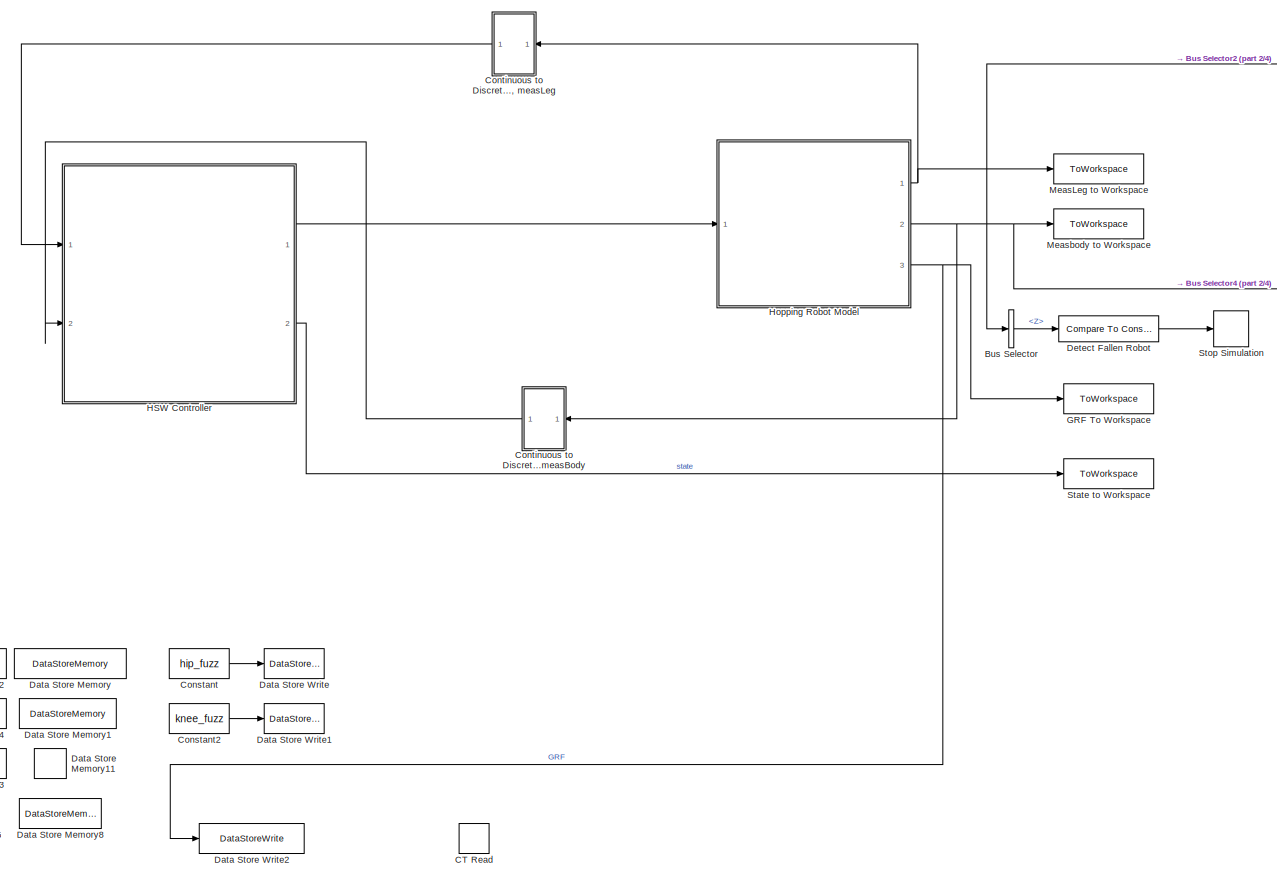
[diagram: root canvas - part 1/4, center side, full height]
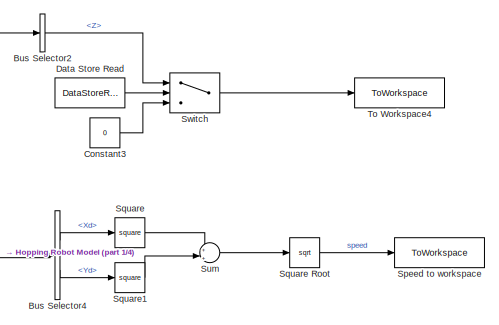
[diagram: root canvas - part 2/4, top right region]
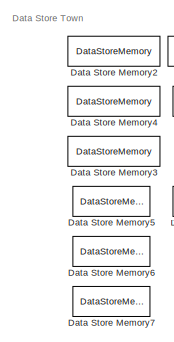
[diagram: root canvas - part 3/4, bottom left region]
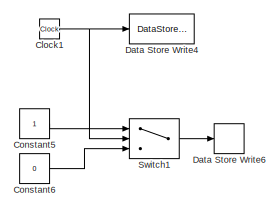
[diagram: root canvas - part 4/4, bottom left region]
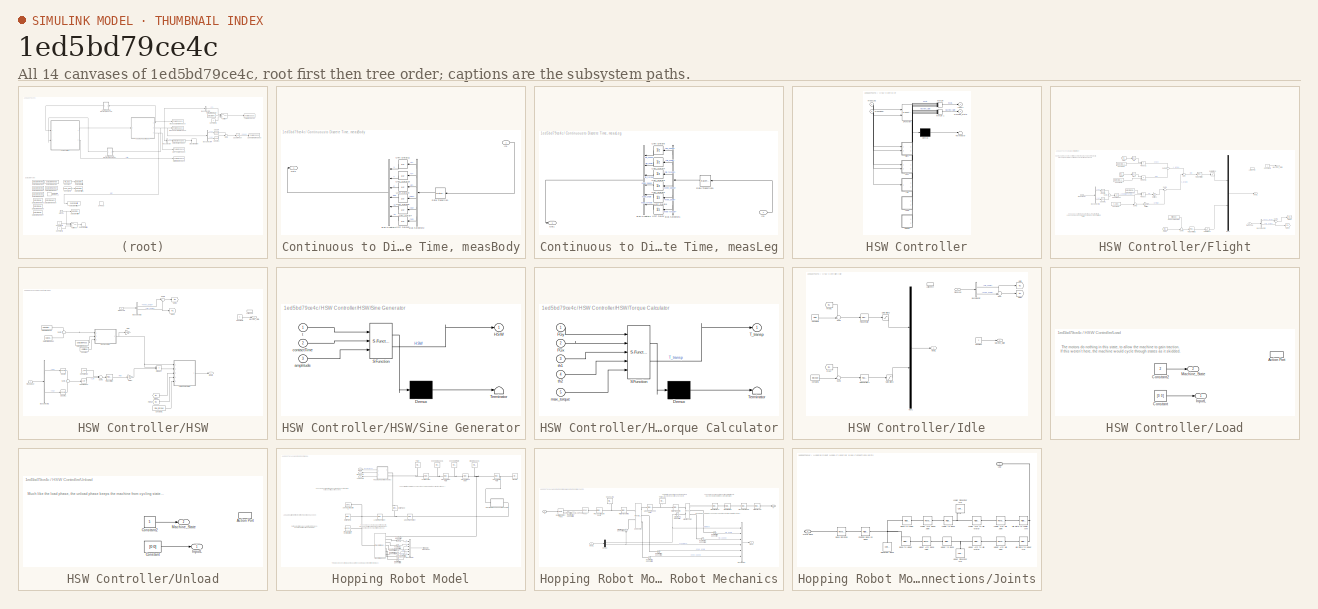
[diagram: thumbnail index - all 14 canvases of the model, root first then tree order]
MODEL slx_1ed5bd79ce4c
KIND model
CONFIG AbsTol = auto
CONFIG EnableMultiTasking = off
CONFIG FixedStep = 1E-6
CONFIG MaxStep = 1E-5
CONFIG MinStep = auto
CONFIG RelTol = 1E-9
CONFIG SampleTimeConstraint = Unconstrained
CONFIG SolverName = VariableStepAuto
CONFIG StartTime = 0.0
CONFIG StopTime = 4
BLOCK [BusSelector] Bus Selector
  OutputSignals = Z
  Ports = [1, 1]
BLOCK [BusSelector] Bus Selector2
  OutputSignals = Z
  Ports = [1, 1]
BLOCK [BusSelector] Bus Selector4
  OutputSignals = Xd,Yd
  Ports = [1, 2]
BLOCK [DataStoreRead] CT Read
  DataStoreName = contactTime
  IndexOptions = Index vector (dialog)
  Indices = 1
  OutputSizes = 1
  Ports = [0, 1]
BLOCK [Clock] Clock1
BLOCK [Constant] Constant
  Commented = on
  Value = hip_fuzz
BLOCK [Constant] Constant2
  Commented = on
  Value = knee_fuzz
BLOCK [Constant] Constant3
  Value = 0
BLOCK [Constant] Constant5
BLOCK [Constant] Constant6
  Value = 0
BLOCK [SubSystem] Continuous to Discrete Time, measBody
  Ports = [1, 1]
  RequestExecContextInheritance = off
BLOCK [BusCreator] Continuous to Discrete Time, measBody/Bus Creator2
  DisplayOption = bar
  InheritFromInputs = on
  Inputs = 6
  Ports = [6, 1]
BLOCK [BusSelector] Continuous to Discrete Time, measBody/Bus Selector2
  OutputSignals = X,Y,Z,Zdd,Xd,Yd
  Ports = [1, 6]
BLOCK [Inport] Continuous to Discrete Time, measBody/In1
BLOCK [Outport] Continuous to Discrete Time, measBody/Out1
BLOCK [RateTransition] Continuous to Discrete Time, measBody/Rate Transition
BLOCK [UnitDelay] Continuous to Discrete Time, measBody/Unit Delay10
  HasFrameUpgradeWarning = on
  SampleTime = -1
BLOCK [UnitDelay] Continuous to Discrete Time, measBody/Unit Delay11
  HasFrameUpgradeWarning = on
  SampleTime = -1
BLOCK [UnitDelay] Continuous to Discrete Time, measBody/Unit Delay6
  HasFrameUpgradeWarning = on
  SampleTime = -1
BLOCK [UnitDelay] Continuous to Discrete Time, measBody/Unit Delay7
  HasFrameUpgradeWarning = on
  SampleTime = -1
BLOCK [UnitDelay] Continuous to Discrete Time, measBody/Unit Delay8
  HasFrameUpgradeWarning = on
  SampleTime = -1
BLOCK [UnitDelay] Continuous to Discrete Time, measBody/Unit Delay9
  HasFrameUpgradeWarning = on
  SampleTime = -1
BLOCK [SubSystem] Continuous to Discrete Time, measLeg
  Ports = [1, 1]
  RequestExecContextInheritance = off
BLOCK [BusCreator] Continuous to Discrete Time, measLeg/Bus Creator1
  DisplayOption = bar
  InheritFromInputs = on
  Inputs = 6
  Ports = [6, 1]
BLOCK [BusSelector] Continuous to Discrete Time, measLeg/Bus Selector1
  OutputSignals = hip_speed,hip_angle,hip torque,knee_speed,knee_angle,knee torque
  Ports = [1, 6]
BLOCK [Inport] Continuous to Discrete Time, measLeg/In1
BLOCK [Outport] Continuous to Discrete Time, measLeg/Out1
BLOCK [RateTransition] Continuous to Discrete Time, measLeg/Rate Transition1
BLOCK [UnitDelay] Continuous to Discrete Time, measLeg/Unit Delay
  HasFrameUpgradeWarning = on
  SampleTime = -1
BLOCK [UnitDelay] Continuous to Discrete Time, measLeg/Unit Delay1
  HasFrameUpgradeWarning = on
  SampleTime = -1
BLOCK [UnitDelay] Continuous to Discrete Time, measLeg/Unit Delay2
  HasFrameUpgradeWarning = on
  SampleTime = -1
BLOCK [UnitDelay] Continuous to Discrete Time, measLeg/Unit Delay3
  HasFrameUpgradeWarning = on
  SampleTime = -1
BLOCK [UnitDelay] Continuous to Discrete Time, measLeg/Unit Delay4
  HasFrameUpgradeWarning = on
  SampleTime = -1
BLOCK [UnitDelay] Continuous to Discrete Time, measLeg/Unit Delay5
  HasFrameUpgradeWarning = on
  SampleTime = -1
BLOCK [DataStoreMemory] Data Store Memory
  DataStoreName = Simscape_Transitions
  Dimensions = 1
  OutDataTypeStr = double
  ShowAdditionalParam = off
  SignalType = real
  WriteAfterWriteMsg = warning
BLOCK [DataStoreMemory] Data Store Memory1
  DataStoreName = Hip_Impact_Angle
  OutDataTypeStr = double
  ShowAdditionalParam = off
  SignalType = real
  WriteAfterWriteMsg = warning
BLOCK [DataStoreMemory] Data Store Memory11
  DataStoreName = run
  OutDataTypeStr = double
  ShowAdditionalParam = off
  SignalType = real
  WriteAfterWriteMsg = warning
BLOCK [DataStoreMemory] Data Store Memory2
  DataStoreName = foot_y_flight
  OutDataTypeStr = double
  ShowAdditionalParam = off
  SignalType = real
  WriteAfterWriteMsg = warning
BLOCK [DataStoreMemory] Data Store Memory3
  DataStoreName = SLIP_impact_angle
  OutDataTypeStr = double
  ShowAdditionalParam = off
  SignalType = real
  WriteAfterWriteMsg = warning
BLOCK [DataStoreMemory] Data Store Memory4
  DataStoreName = foot_x_flight
  OutDataTypeStr = double
  ShowAdditionalParam = off
  SignalType = real
  WriteAfterWriteMsg = warning
BLOCK [DataStoreMemory] Data Store Memory5
  DataStoreName = simTime
  OutDataTypeStr = double
  ShowAdditionalParam = off
  SignalType = real
  WriteAfterWriteMsg = warning
BLOCK [DataStoreMemory] Data Store Memory6
  DataStoreName = contactTime
  OutDataTypeStr = double
  ShowAdditionalParam = off
  SignalType = real
  WriteAfterWriteMsg = warning
BLOCK [DataStoreMemory] Data Store Memory7
  DataStoreName = hasHopped
  OutDataTypeStr = double
  ShowAdditionalParam = off
  SignalType = real
  WriteAfterWriteMsg = warning
BLOCK [DataStoreMemory] Data Store Memory8
  DataStoreName = landingTime
  OutDataTypeStr = double
  ShowAdditionalParam = off
  SignalType = real
  WriteAfterWriteMsg = warning
BLOCK [DataStoreRead] Data Store Read
  DataStoreName = hasHopped
  IndexOptions = Index vector (dialog)
  Indices = 1
  OutputSizes = 1
  Ports = [0, 1]
BLOCK [DataStoreWrite] Data Store Write
  Commented = on
  DataStoreName = hip_range
  IndexOptions = Index vector (dialog)
  Indices = 1
  OutputSizes = 1
  Ports = [1]
BLOCK [DataStoreWrite] Data Store Write1
  Commented = on
  DataStoreName = knee_range
  IndexOptions = Index vector (dialog)
  Indices = 1
  OutputSizes = 1
  Ports = [1]
BLOCK [DataStoreWrite] Data Store Write2
  DataStoreName = Simscape_Transitions
  IndexOptions = Index vector (dialog)
  Indices = 1
  OutputSizes = 1
  Ports = [1]
BLOCK [DataStoreWrite] Data Store Write4
  DataStoreName = simTime
  IndexOptions = Index vector (dialog)
  Indices = 1
  OutputSizes = 1
  Ports = [1]
BLOCK [DataStoreWrite] Data Store Write6
  DataStoreName = run
  IndexOptions = Index vector (dialog)
  Indices = 1
  OutputSizes = 1
  Ports = [1]
BLOCK [Reference] Detect Fallen Robot  REF=simulink/Logic and Bit
Operations/Compare
To Constant
  Ports = [1, 1]
  SourceBlock = simulink/Logic and Bit\nOperations/Compare\nTo Constant
  SourceProductBaseCode = SL
  SourceType = Compare To Constant
BLOCK [ToWorkspace] GRF To Workspace
  Commented = on
  FixptAsFi = on
  MaxDataPoints = inf
  Ports = [1]
  SampleTime = -1
  VariableName = GRF
BLOCK [SubSystem] HSW Controller
  ErrorFcn = Stateflow.Translate.translate
  PermitHierarchicalResolution = ExplicitOnly
  Ports = [2, 2]
  RequestExecContextInheritance = off
  SFBlockType = Chart
  TreatAsAtomicUnit = on
BLOCK [Demux] HSW Controller/ Demux 
  Outputs = 1
  Ports = [1, 1]
BLOCK [Merge] HSW Controller/ Merge 
  Inputs = 6
  Ports = [6, 1]
BLOCK [Merge] HSW Controller/ Merge 1
  Inputs = 6
  Ports = [6, 1]
BLOCK [S-Function] HSW Controller/ SFunction 
  EnableBusSupport = on
  FunctionName = sf_sfun
  PortCounts = [2 3]
  Ports = [2, 3]
  SFcnIsStateOwnerBlock = off
  SFunctionDeploymentMode = off
  Tag = Stateflow S-Function 3
BLOCK [Terminator] HSW Controller/ Terminator 
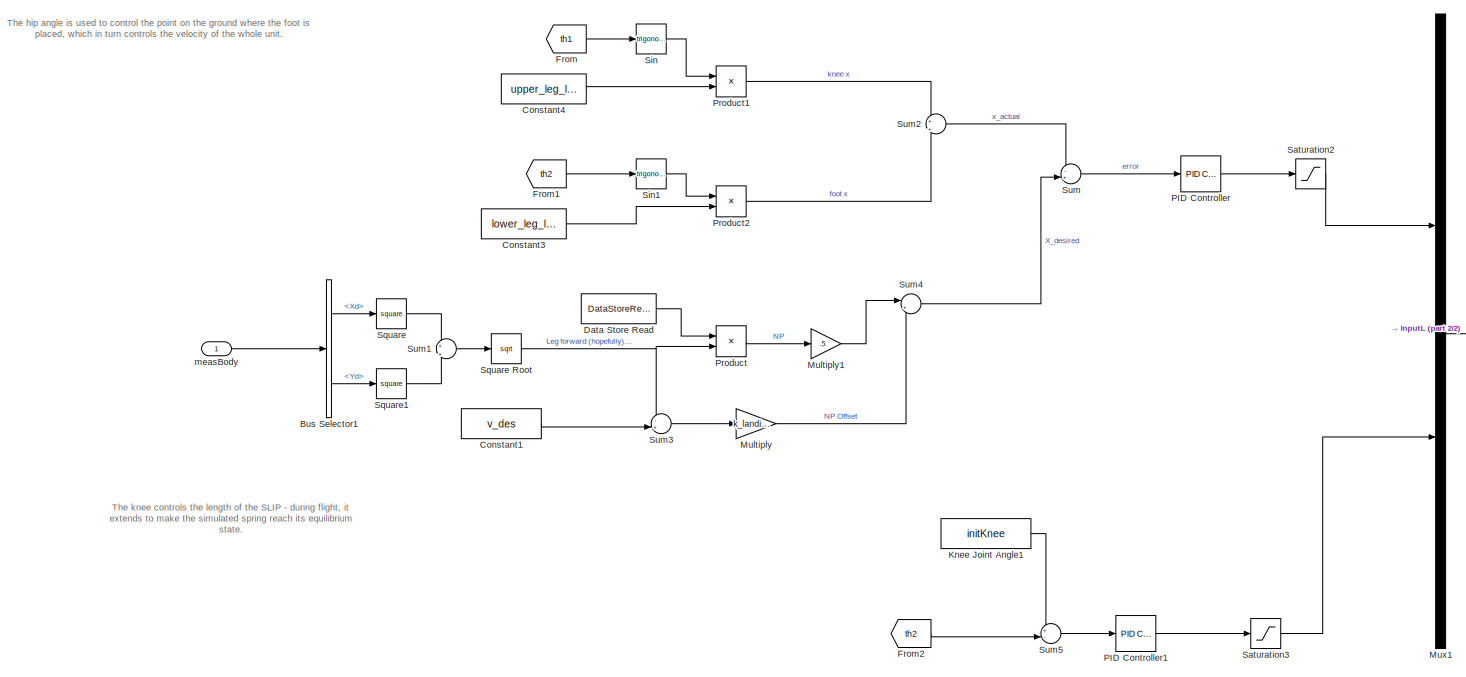
[diagram: HSW Controller/Flight - part 1/2, most of the canvas]
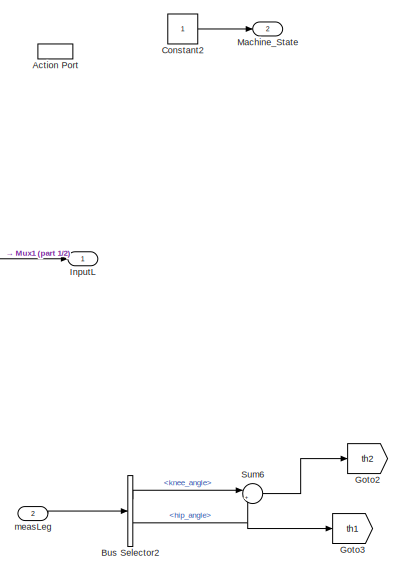
[diagram: HSW Controller/Flight - part 2/2, right side, full height]
BLOCK [SubSystem] HSW Controller/Flight
  Ports = [2, 2, 0, 0, 0, 0, 0, 1]
  PreDeleteFcn = Stateflow.SLINSF.SimulinkMan.removePreDeleteFcn
  RequestExecContextInheritance = off
  UndoDeleteFcn = Stateflow.SLINSF.SimulinkMan.restorePreDeleteFcn
BLOCK [ActionPort] HSW Controller/Flight/Action Port
  CopyFcn = Stateflow.SLINSF.SimulinkMan.removeBlockPreDeleteFcn
  PreDeleteFcn = Stateflow.SLINSF.SimulinkMan.unsafePredeleteFcn
BLOCK [BusSelector] HSW Controller/Flight/Bus Selector1
  OutputSignals = Xd,Yd
  Ports = [1, 2]
BLOCK [BusSelector] HSW Controller/Flight/Bus Selector2
  OutputSignals = knee_angle,hip_angle
  Ports = [1, 2]
BLOCK [Constant] HSW Controller/Flight/Constant1
  Value = v_des
BLOCK [Constant] HSW Controller/Flight/Constant2
BLOCK [Constant] HSW Controller/Flight/Constant3
  Value = lower_leg_length
BLOCK [Constant] HSW Controller/Flight/Constant4
  Value = upper_leg_length
BLOCK [DataStoreRead] HSW Controller/Flight/Data Store Read
  DataStoreName = contactTime
  IndexOptions = Index vector (dialog)
  Indices = 1
  OutputSizes = 1
  Ports = [0, 1]
BLOCK [From] HSW Controller/Flight/From
  GotoTag = th1
BLOCK [From] HSW Controller/Flight/From1
  GotoTag = th2
BLOCK [From] HSW Controller/Flight/From2
  GotoTag = th2
BLOCK [Goto] HSW Controller/Flight/Goto2
  GotoTag = th2
BLOCK [Goto] HSW Controller/Flight/Goto3
  GotoTag = th1
BLOCK [Outport] HSW Controller/Flight/InputL
BLOCK [Constant] HSW Controller/Flight/Knee Joint Angle1
  Value = initKnee
BLOCK [Outport] HSW Controller/Flight/Machine_State
  Port = 2
BLOCK [Gain] HSW Controller/Flight/Multiply
  Gain = k_landing_angle
BLOCK [Gain] HSW Controller/Flight/Multiply1
  Gain = .5
BLOCK [Mux] HSW Controller/Flight/Mux1
  DisplayOption = bar
  Inputs = 2
  Ports = [2, 1]
BLOCK [Reference] HSW Controller/Flight/PID Controller  REF=slpidlib/PID Controller
  Ports = [1, 1]
  SourceBlock = slpidlib/PID Controller
  SourceProductBaseCode = SL
  SourceType = PID 1dof
BLOCK [Reference] HSW Controller/Flight/PID Controller1  REF=slpidlib/PID Controller
  Ports = [1, 1]
  SourceBlock = slpidlib/PID Controller
  SourceProductBaseCode = SL
  SourceType = PID 1dof
BLOCK [Product] HSW Controller/Flight/Product
  Ports = [2, 1]
BLOCK [Product] HSW Controller/Flight/Product1
  Ports = [2, 1]
BLOCK [Product] HSW Controller/Flight/Product2
  Ports = [2, 1]
BLOCK [Saturate] HSW Controller/Flight/Saturation2
  LowerLimit = -max_torque
  UpperLimit = max_torque
BLOCK [Saturate] HSW Controller/Flight/Saturation3
  LowerLimit = -max_torque
  UpperLimit = max_torque
BLOCK [Trigonometry] HSW Controller/Flight/Sin
  Ports = [1, 1]
BLOCK [Trigonometry] HSW Controller/Flight/Sin1
  Ports = [1, 1]
BLOCK [Math] HSW Controller/Flight/Square
  Operator = square
  Ports = [1, 1]
BLOCK [Sqrt] HSW Controller/Flight/Square Root
BLOCK [Math] HSW Controller/Flight/Square1
  Operator = square
  Ports = [1, 1]
BLOCK [Sum] HSW Controller/Flight/Sum
  Inputs = -+|
  Ports = [2, 1]
BLOCK [Sum] HSW Controller/Flight/Sum1
  Inputs = +|+
  Ports = [2, 1]
BLOCK [Sum] HSW Controller/Flight/Sum2
  Inputs = +|+
  Ports = [2, 1]
BLOCK [Sum] HSW Controller/Flight/Sum3
  Inputs = -+|
  Ports = [2, 1]
BLOCK [Sum] HSW Controller/Flight/Sum4
  Inputs = |++
  Ports = [2, 1]
BLOCK [Sum] HSW Controller/Flight/Sum5
  Inputs = +-|
  Ports = [2, 1]
BLOCK [Sum] HSW Controller/Flight/Sum6
  Inputs = |++
  Ports = [2, 1]
BLOCK [Inport] HSW Controller/Flight/measBody
BLOCK [Inport] HSW Controller/Flight/measLeg
  Port = 2
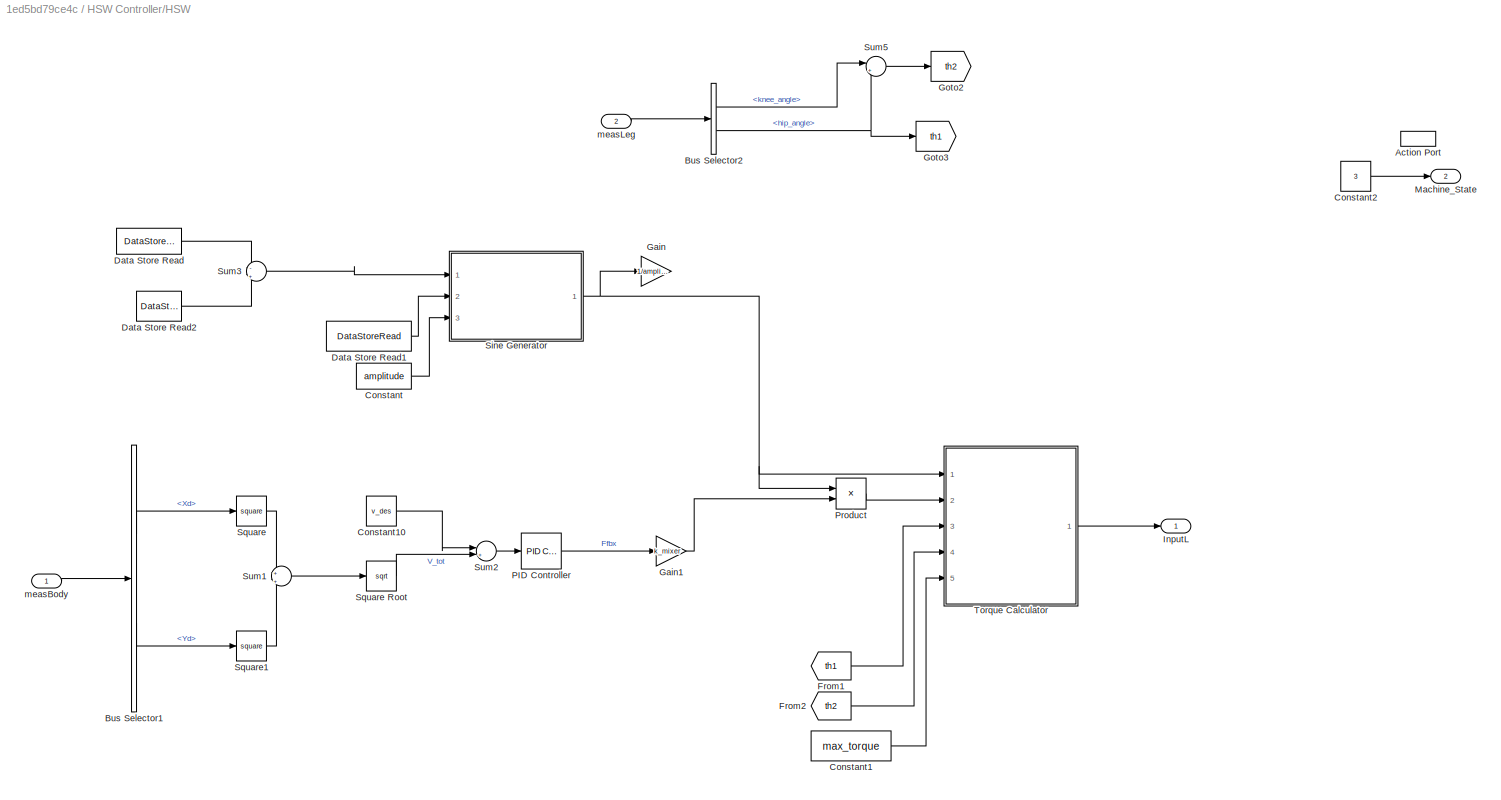
BLOCK [SubSystem] HSW Controller/HSW
  Ports = [2, 2, 0, 0, 0, 0, 0, 1]
  PreDeleteFcn = Stateflow.SLINSF.SimulinkMan.removePreDeleteFcn
  RequestExecContextInheritance = off
  UndoDeleteFcn = Stateflow.SLINSF.SimulinkMan.restorePreDeleteFcn
BLOCK [ActionPort] HSW Controller/HSW/Action Port
  CopyFcn = Stateflow.SLINSF.SimulinkMan.removeBlockPreDeleteFcn
  PreDeleteFcn = Stateflow.SLINSF.SimulinkMan.unsafePredeleteFcn
BLOCK [BusSelector] HSW Controller/HSW/Bus Selector1
  OutputSignals = Xd,Yd
  Ports = [1, 2]
BLOCK [BusSelector] HSW Controller/HSW/Bus Selector2
  OutputSignals = knee_angle,hip_angle
  Ports = [1, 2]
BLOCK [Constant] HSW Controller/HSW/Constant
  Value = amplitude
BLOCK [Constant] HSW Controller/HSW/Constant1
  Value = max_torque
BLOCK [Constant] HSW Controller/HSW/Constant10
  Value = v_des
BLOCK [Constant] HSW Controller/HSW/Constant2
  Value = 3
BLOCK [DataStoreRead] HSW Controller/HSW/Data Store Read
  DataStoreName = landingTime
  IndexOptions = Index vector (dialog)
  Indices = 1
  OutputSizes = 1
  Ports = [0, 1]
BLOCK [DataStoreRead] HSW Controller/HSW/Data Store Read1
  DataStoreName = contactTime
  IndexOptions = Index vector (dialog)
  Indices = 1
  OutputSizes = 1
  Ports = [0, 1]
BLOCK [DataStoreRead] HSW Controller/HSW/Data Store Read2
  DataStoreName = simTime
  IndexOptions = Index vector (dialog)
  Indices = 1
  OutputSizes = 1
  Ports = [0, 1]
BLOCK [From] HSW Controller/HSW/From1
  GotoTag = th1
BLOCK [From] HSW Controller/HSW/From2
  GotoTag = th2
BLOCK [Gain] HSW Controller/HSW/Gain
  Gain = 1/amplitude
BLOCK [Gain] HSW Controller/HSW/Gain1
  Gain = k_mixer
BLOCK [Goto] HSW Controller/HSW/Goto2
  GotoTag = th2
BLOCK [Goto] HSW Controller/HSW/Goto3
  GotoTag = th1
BLOCK [Outport] HSW Controller/HSW/InputL
BLOCK [Outport] HSW Controller/HSW/Machine_State
  Port = 2
BLOCK [Reference] HSW Controller/HSW/PID Controller  REF=slpidlib/PID Controller
  Ports = [1, 1]
  SourceBlock = slpidlib/PID Controller
  SourceProductBaseCode = SL
  SourceType = PID 1dof
BLOCK [Product] HSW Controller/HSW/Product
  Ports = [2, 1]
BLOCK [SubSystem] HSW Controller/HSW/Sine Generator
  ErrorFcn = Stateflow.Translate.translate
  PermitHierarchicalResolution = ExplicitOnly
  Ports = [3, 1]
  RequestExecContextInheritance = off
  SFBlockType = MATLAB Function
  TreatAsAtomicUnit = on
BLOCK [Demux] HSW Controller/HSW/Sine Generator/ Demux 
  Outputs = 1
  Ports = [1, 1]
BLOCK [S-Function] HSW Controller/HSW/Sine Generator/ SFunction 
  EnableBusSupport = on
  FunctionName = sf_sfun
  PortCounts = [3 2]
  Ports = [3, 2]
  SFcnIsStateOwnerBlock = off
  SFunctionDeploymentMode = off
  Tag = Stateflow S-Function 1
BLOCK [Terminator] HSW Controller/HSW/Sine Generator/ Terminator 
BLOCK [Outport] HSW Controller/HSW/Sine Generator/HSW
BLOCK [Inport] HSW Controller/HSW/Sine Generator/amplitude
  Port = 3
BLOCK [Inport] HSW Controller/HSW/Sine Generator/contactTime
  Port = 2
BLOCK [Inport] HSW Controller/HSW/Sine Generator/t
BLOCK [Math] HSW Controller/HSW/Square
  Operator = square
  Ports = [1, 1]
BLOCK [Sqrt] HSW Controller/HSW/Square Root
BLOCK [Math] HSW Controller/HSW/Square1
  Operator = square
  Ports = [1, 1]
BLOCK [Sum] HSW Controller/HSW/Sum1
  Inputs = +|+
  Ports = [2, 1]
BLOCK [Sum] HSW Controller/HSW/Sum2
  Inputs = |+-
  Ports = [2, 1]
BLOCK [Sum] HSW Controller/HSW/Sum3
  Inputs = -|+
  Ports = [2, 1]
BLOCK [Sum] HSW Controller/HSW/Sum5
  Inputs = |++
  Ports = [2, 1]
BLOCK [SubSystem] HSW Controller/HSW/Torque Calculator
  ErrorFcn = Stateflow.Translate.translate
  PermitHierarchicalResolution = ExplicitOnly
  Ports = [5, 1]
  RequestExecContextInheritance = off
  SFBlockType = MATLAB Function
  TreatAsAtomicUnit = on
BLOCK [Demux] HSW Controller/HSW/Torque Calculator/ Demux 
  Outputs = 1
  Ports = [1, 1]
BLOCK [S-Function] HSW Controller/HSW/Torque Calculator/ SFunction 
  EnableBusSupport = on
  FunctionName = sf_sfun
  Parameters = S
  PortCounts = [5 2]
  Ports = [5, 2]
  SFcnIsStateOwnerBlock = off
  SFunctionDeploymentMode = off
  Tag = Stateflow S-Function 2
BLOCK [Terminator] HSW Controller/HSW/Torque Calculator/ Terminator 
BLOCK [Inport] HSW Controller/HSW/Torque Calculator/FGx
  Port = 2
BLOCK [Inport] HSW Controller/HSW/Torque Calculator/FGy
BLOCK [Outport] HSW Controller/HSW/Torque Calculator/T_transp
BLOCK [Inport] HSW Controller/HSW/Torque Calculator/max_torque
  Port = 5
BLOCK [Inport] HSW Controller/HSW/Torque Calculator/th1
  Port = 3
BLOCK [Inport] HSW Controller/HSW/Torque Calculator/th2
  Port = 4
BLOCK [Inport] HSW Controller/HSW/measBody
BLOCK [Inport] HSW Controller/HSW/measLeg
  Port = 2
BLOCK [SubSystem] HSW Controller/Idle
  Ports = [1, 2, 0, 0, 0, 0, 0, 1]
  PreDeleteFcn = Stateflow.SLINSF.SimulinkMan.removePreDeleteFcn
  RequestExecContextInheritance = off
  UndoDeleteFcn = Stateflow.SLINSF.SimulinkMan.restorePreDeleteFcn
BLOCK [ActionPort] HSW Controller/Idle/Action Port
  CopyFcn = Stateflow.SLINSF.SimulinkMan.removeBlockPreDeleteFcn
  PreDeleteFcn = Stateflow.SLINSF.SimulinkMan.unsafePredeleteFcn
BLOCK [BusSelector] HSW Controller/Idle/Bus Selector
  OutputSignals = hip_angle,knee_angle
  Ports = [1, 2]
BLOCK [Constant] HSW Controller/Idle/Constant
  Value = 0
BLOCK [Constant] HSW Controller/Idle/Constant1
  Value = initKnee
BLOCK [Constant] HSW Controller/Idle/Constant2
  Value = initHip
BLOCK [From] HSW Controller/Idle/From
  GotoTag = th2
BLOCK [From] HSW Controller/Idle/From1
  GotoTag = th1
BLOCK [Goto] HSW Controller/Idle/Goto
  GotoTag = th1
BLOCK [Goto] HSW Controller/Idle/Goto1
  GotoTag = th2
BLOCK [Outport] HSW Controller/Idle/InputL
BLOCK [Outport] HSW Controller/Idle/Machine_State
  Port = 2
BLOCK [Mux] HSW Controller/Idle/Mux1
  DisplayOption = bar
  Inputs = 2
  Ports = [2, 1]
BLOCK [Reference] HSW Controller/Idle/PID Controller  REF=slpidlib/PID Controller
  Ports = [1, 1]
  SourceBlock = slpidlib/PID Controller
  SourceProductBaseCode = SL
  SourceType = PID 1dof
BLOCK [Reference] HSW Controller/Idle/PID Controller1  REF=slpidlib/PID Controller
  Ports = [1, 1]
  SourceBlock = slpidlib/PID Controller
  SourceProductBaseCode = SL
  SourceType = PID 1dof
BLOCK [Saturate] HSW Controller/Idle/Saturation2
  LowerLimit = -max_torque
  UpperLimit = max_torque
BLOCK [Saturate] HSW Controller/Idle/Saturation3
  LowerLimit = -max_torque
  UpperLimit = max_torque
BLOCK [Sum] HSW Controller/Idle/Sum
  Inputs = ++|
  Ports = [2, 1]
BLOCK [Sum] HSW Controller/Idle/Sum1
  Inputs = -+|
  Ports = [2, 1]
BLOCK [Sum] HSW Controller/Idle/Sum2
  Inputs = -+|
  Ports = [2, 1]
BLOCK [Inport] HSW Controller/Idle/measLeg
BLOCK [Outport] HSW Controller/InputL
BLOCK [SubSystem] HSW Controller/Load
  Ports = [0, 2, 0, 0, 0, 0, 0, 1]
  PreDeleteFcn = Stateflow.SLINSF.SimulinkMan.removePreDeleteFcn
  RequestExecContextInheritance = off
  UndoDeleteFcn = Stateflow.SLINSF.SimulinkMan.restorePreDeleteFcn
BLOCK [ActionPort] HSW Controller/Load/Action Port
  CopyFcn = Stateflow.SLINSF.SimulinkMan.removeBlockPreDeleteFcn
  PreDeleteFcn = Stateflow.SLINSF.SimulinkMan.unsafePredeleteFcn
BLOCK [Constant] HSW Controller/Load/Constant
  Value = [0 0]
  VectorParams1D = off
BLOCK [Constant] HSW Controller/Load/Constant2
  Value = 2
BLOCK [Outport] HSW Controller/Load/InputL
BLOCK [Outport] HSW Controller/Load/Machine_State
  Port = 2
BLOCK [Outport] HSW Controller/Machine_State
  Port = 2
BLOCK [SubSystem] HSW Controller/Unload
  Ports = [0, 2, 0, 0, 0, 0, 0, 1]
  PreDeleteFcn = Stateflow.SLINSF.SimulinkMan.removePreDeleteFcn
  RequestExecContextInheritance = off
  UndoDeleteFcn = Stateflow.SLINSF.SimulinkMan.restorePreDeleteFcn
BLOCK [ActionPort] HSW Controller/Unload/Action Port
  CopyFcn = Stateflow.SLINSF.SimulinkMan.removeBlockPreDeleteFcn
  PreDeleteFcn = Stateflow.SLINSF.SimulinkMan.unsafePredeleteFcn
BLOCK [Constant] HSW Controller/Unload/Constant
  Value = [0 0]
  VectorParams1D = off
BLOCK [Constant] HSW Controller/Unload/Constant2
  Value = 5
BLOCK [Outport] HSW Controller/Unload/InputL
BLOCK [Outport] HSW Controller/Unload/Machine_State
  Port = 2
BLOCK [Inport] HSW Controller/measBody
  Port = 2
BLOCK [Inport] HSW Controller/measLeg
BLOCK [SubSystem] Hopping Robot Model
  Ports = [1, 3]
  RequestExecContextInheritance = off
BLOCK [Outport] Hopping Robot Model/AvgFootN
  Port = 3
BLOCK [BusCreator] Hopping Robot Model/Bus Creator
  DisplayOption = bar
  InheritFromInputs = on
  Inputs = 6
  Ports = [6, 1]
BLOCK [Reference] Hopping Robot Model/Hip Motor AK80-6  REF=sm_lib/Body Elements/File Solid
  NameLocation = top
  Ports = [0, 0, 0, 0, 0, 0, 1]
  SourceBlock = sm_lib/Body Elements/File Solid
  SourceProductBaseCode = MS
  SourceType = File Solid
BLOCK [Reference] Hopping Robot Model/Hip Plate  REF=sm_lib/Body Elements/File Solid
  NameLocation = top
  Ports = [0, 0, 0, 0, 0, 0, 1]
  SourceBlock = sm_lib/Body Elements/File Solid
  SourceProductBaseCode = MS
  SourceType = File Solid
BLOCK [SubSystem] Hopping Robot Model/Hopping Robot Mechanics
  PortSchema = {"entries":[{"content":{"sides":[{"content":{"connectorIds":["LConn1","LConn2"]},"type":"ConnectorPlacement.EquallySpacedRectSide","uuid":"2e35cc04-a060-4e4a-9dbe-9dc1ccd10687"},{"content":{"connectorIds":["In1","Out1","Out2"],"side":"RIGHT"},"type":"ConnectorPlacement.EquallySpacedRectSide","uuid":"c6bb660b-0b98-4ab9-9025-982c1a13b41d"},{"content":{"connectorIds":[],"side":"TOP"},"type":"Connecto...<+409ch>
  Ports = [1, 2, 0, 0, 0, 2]
  RequestExecContextInheritance = off
BLOCK [Outport] Hopping Robot Model/Hopping Robot Mechanics/AvgFootN
  Port = 2
BLOCK [BusCreator] Hopping Robot Model/Hopping Robot Mechanics/Bus Creator
  DisplayOption = bar
  InheritFromInputs = on
  Inputs = 6
  Ports = [6, 1]
BLOCK [Demux] Hopping Robot Model/Hopping Robot Mechanics/Demux
  Outputs = 2
  Ports = [1, 2]
BLOCK [Reference] Hopping Robot Model/Hopping Robot Mechanics/Foot  REF=sm_lib/Body Elements/Spherical Solid
  NameLocation = top
  Ports = [0, 0, 0, 0, 0, 1, 1]
  SourceBlock = sm_lib/Body Elements/Spherical Solid
  SourceProductBaseCode = MS
  SourceType = Spherical Solid
BLOCK [PMIOPort] Hopping Robot Model/Hopping Robot Mechanics/G
  Side = Left
BLOCK [PMIOPort] Hopping Robot Model/Hopping Robot Mechanics/H
  Port = 2
  Side = Left
BLOCK [Reference] Hopping Robot Model/Hopping Robot Mechanics/Hip Pitch Joint  REF=sm_lib/Joints/Revolute Joint
  Ports = [0, 0, 0, 0, 0, 2, 3]
  SourceBlock = sm_lib/Joints/Revolute Joint
  SourceProductBaseCode = MS
  SourceType = Revolute Joint
BLOCK [Reference] Hopping Robot Model/Hopping Robot Mechanics/Hip Roll to Pitch  REF=sm_lib/Frames and
Transforms/Rigid
Transform
  Ports = [0, 0, 0, 0, 0, 1, 1]
  SourceBlock = sm_lib/Frames and\nTransforms/Rigid\nTransform
  SourceProductBaseCode = MS
  SourceType = Rigid\nTransform
BLOCK [Reference] Hopping Robot Model/Hopping Robot Mechanics/Hip Roll to Pitch1  REF=sm_lib/Frames and
Transforms/Rigid
Transform
  Ports = [0, 0, 0, 0, 0, 1, 1]
  SourceBlock = sm_lib/Frames and\nTransforms/Rigid\nTransform
  SourceProductBaseCode = MS
  SourceType = Rigid\nTransform
BLOCK [Reference] Hopping Robot Model/Hopping Robot Mechanics/Hip Yaw to Hip Roll  REF=sm_lib/Frames and
Transforms/Rigid
Transform
  Ports = [0, 0, 0, 0, 0, 1, 1]
  SourceBlock = sm_lib/Frames and\nTransforms/Rigid\nTransform
  SourceProductBaseCode = MS
  SourceType = Rigid\nTransform
BLOCK [Reference] Hopping Robot Model/Hopping Robot Mechanics/Hip to Hip Yaw  REF=sm_lib/Frames and
Transforms/Rigid
Transform
  Ports = [0, 0, 0, 0, 0, 1, 1]
  SourceBlock = sm_lib/Frames and\nTransforms/Rigid\nTransform
  SourceProductBaseCode = MS
  SourceType = Rigid\nTransform
BLOCK [Inport] Hopping Robot Model/Hopping Robot Mechanics/InputL
BLOCK [Reference] Hopping Robot Model/Hopping Robot Mechanics/Knee Joint  REF=sm_lib/Joints/Revolute Joint
  Ports = [0, 0, 0, 0, 0, 2, 3]
  SourceBlock = sm_lib/Joints/Revolute Joint
  SourceProductBaseCode = MS
  SourceType = Revolute Joint
BLOCK [Reference] Hopping Robot Model/Hopping Robot Mechanics/PS-Simulink Converter  REF=nesl_utility/PS-Simulink
Converter
  Ports = [0, 1, 0, 0, 0, 1]
  SourceBlock = nesl_utility/PS-Simulink\nConverter
  SourceProductBaseCode = SS,PW,VE
  SourceType = PS-Simulink\nConverter
BLOCK [Reference] Hopping Robot Model/Hopping Robot Mechanics/PS-Simulink Converter1  REF=nesl_utility/PS-Simulink
Converter
  Ports = [0, 1, 0, 0, 0, 1]
  SourceBlock = nesl_utility/PS-Simulink\nConverter
  SourceProductBaseCode = SS,PW,VE
  SourceType = PS-Simulink\nConverter
BLOCK [Reference] Hopping Robot Model/Hopping Robot Mechanics/PS-Simulink Converter2  REF=nesl_utility/PS-Simulink
Converter
  Ports = [0, 1, 0, 0, 0, 1]
  SourceBlock = nesl_utility/PS-Simulink\nConverter
  SourceProductBaseCode = SS,PW,VE
  SourceType = PS-Simulink\nConverter
BLOCK [Reference] Hopping Robot Model/Hopping Robot Mechanics/PS-Simulink Converter3  REF=nesl_utility/PS-Simulink
Converter
  Ports = [0, 1, 0, 0, 0, 1]
  SourceBlock = nesl_utility/PS-Simulink\nConverter
  SourceProductBaseCode = SS,PW,VE
  SourceType = PS-Simulink\nConverter
BLOCK [Reference] Hopping Robot Model/Hopping Robot Mechanics/PS-Simulink Converter4  REF=nesl_utility/PS-Simulink
Converter
  Ports = [0, 1, 0, 0, 0, 1]
  SourceBlock = nesl_utility/PS-Simulink\nConverter
  SourceProductBaseCode = SS,PW,VE
  SourceType = PS-Simulink\nConverter
BLOCK [Reference] Hopping Robot Model/Hopping Robot Mechanics/Place Foot in Link Cavity  REF=sm_lib/Frames and
Transforms/Rigid
Transform
  Ports = [0, 0, 0, 0, 0, 1, 1]
  SourceBlock = sm_lib/Frames and\nTransforms/Rigid\nTransform
  SourceProductBaseCode = MS
  SourceType = Rigid\nTransform
BLOCK [Reference] Hopping Robot Model/Hopping Robot Mechanics/Rigid Transform  REF=sm_lib/Frames and
Transforms/Rigid
Transform
  Ports = [0, 0, 0, 0, 0, 1, 1]
  SourceBlock = sm_lib/Frames and\nTransforms/Rigid\nTransform
  SourceProductBaseCode = MS
  SourceType = Rigid\nTransform
BLOCK [Reference] Hopping Robot Model/Hopping Robot Mechanics/Rigid Transform3  REF=sm_lib/Frames and
Transforms/Rigid
Transform
  Ports = [0, 0, 0, 0, 0, 1, 1]
  SourceBlock = sm_lib/Frames and\nTransforms/Rigid\nTransform
  SourceProductBaseCode = MS
  SourceType = Rigid\nTransform
BLOCK [Reference] Hopping Robot Model/Hopping Robot Mechanics/Shank Link  REF=sm_lib/Body Elements/File Solid
  NameLocation = top
  Ports = [0, 0, 0, 0, 0, 0, 1]
  SourceBlock = sm_lib/Body Elements/File Solid
  SourceProductBaseCode = MS
  SourceType = File Solid
BLOCK [Reference] Hopping Robot Model/Hopping Robot Mechanics/Simulink-PS Converter  REF=nesl_utility/Simulink-PS
Converter
  Ports = [1, 0, 0, 0, 0, 0, 1]
  SourceBlock = nesl_utility/Simulink-PS\nConverter
  SourceProductBaseCode = SS,PW,VE
  SourceType = Simulink-PS\nConverter
BLOCK [Reference] Hopping Robot Model/Hopping Robot Mechanics/Simulink-PS Converter1  REF=nesl_utility/Simulink-PS
Converter
  NameLocation = right
  Ports = [1, 0, 0, 0, 0, 0, 1]
  SourceBlock = nesl_utility/Simulink-PS\nConverter
  SourceProductBaseCode = SS,PW,VE
  SourceType = Simulink-PS\nConverter
BLOCK [Reference] Hopping Robot Model/Hopping Robot Mechanics/Spatial Contact Force  REF=sm_lib/Forces and
Torques/Spatial
Contact Force
  Ports = [0, 0, 0, 0, 0, 1, 2]
  SourceBlock = sm_lib/Forces and\nTorques/Spatial\nContact Force
  SourceProductBaseCode = MS
  SourceType = Spatial\nContact Force
BLOCK [Reference] Hopping Robot Model/Hopping Robot Mechanics/Thigh Link  REF=sm_lib/Body Elements/File Solid
  NameLocation = top
  Ports = [0, 0, 0, 0, 0, 0, 1]
  SourceBlock = sm_lib/Body Elements/File Solid
  SourceProductBaseCode = MS
  SourceType = File Solid
BLOCK [Reference] Hopping Robot Model/Hopping Robot Mechanics/Upper Leg to Knee Joint  REF=sm_lib/Frames and
Transforms/Rigid
Transform
  NameLocation = top
  Ports = [0, 0, 0, 0, 0, 1, 1]
  SourceBlock = sm_lib/Frames and\nTransforms/Rigid\nTransform
  SourceProductBaseCode = MS
  SourceType = Rigid\nTransform
BLOCK [Outport] Hopping Robot Model/Hopping Robot Mechanics/meas
BLOCK [Inport] Hopping Robot Model/InputL
BLOCK [Reference] Hopping Robot Model/Knee Motor AK80-6  REF=sm_lib/Body Elements/File Solid
  NameLocation = top
  Ports = [0, 0, 0, 0, 0, 0, 1]
  SourceBlock = sm_lib/Body Elements/File Solid
  SourceProductBaseCode = MS
  SourceType = File Solid
BLOCK [Reference] Hopping Robot Model/Knee Motor Plate  REF=sm_lib/Body Elements/File Solid
  NameLocation = top
  Ports = [0, 0, 0, 0, 0, 0, 1]
  SourceBlock = sm_lib/Body Elements/File Solid
  SourceProductBaseCode = MS
  SourceType = File Solid
BLOCK [Reference] Hopping Robot Model/Lower Plane Offset  REF=sm_lib/Frames and
Transforms/Rigid
Transform
  Ports = [0, 0, 0, 0, 0, 1, 1]
  SourceBlock = sm_lib/Frames and\nTransforms/Rigid\nTransform
  SourceProductBaseCode = MS
  SourceType = Rigid\nTransform
BLOCK [Reference] Hopping Robot Model/Mechanism Configuration  REF=sm_lib/Utilities/Mechanism
Configuration
  Ports = [0, 0, 0, 0, 0, 0, 1]
  SourceBlock = sm_lib/Utilities/Mechanism\nConfiguration
  SourceProductBaseCode = MS
  SourceType = Mechanism\nConfiguration
BLOCK [Reference] Hopping Robot Model/PS-Simulink Converter  REF=nesl_utility/PS-Simulink
Converter
  Ports = [0, 1, 0, 0, 0, 1]
  SourceBlock = nesl_utility/PS-Simulink\nConverter
  SourceProductBaseCode = SS,PW,VE
  SourceType = PS-Simulink\nConverter
BLOCK [Reference] Hopping Robot Model/PS-Simulink Converter1  REF=nesl_utility/PS-Simulink
Converter
  Ports = [0, 1, 0, 0, 0, 1]
  SourceBlock = nesl_utility/PS-Simulink\nConverter
  SourceProductBaseCode = SS,PW,VE
  SourceType = PS-Simulink\nConverter
BLOCK [Reference] Hopping Robot Model/PS-Simulink Converter2  REF=nesl_utility/PS-Simulink
Converter
  Ports = [0, 1, 0, 0, 0, 1]
  SourceBlock = nesl_utility/PS-Simulink\nConverter
  SourceProductBaseCode = SS,PW,VE
  SourceType = PS-Simulink\nConverter
BLOCK [Reference] Hopping Robot Model/PS-Simulink Converter3  REF=nesl_utility/PS-Simulink
Converter
  Ports = [0, 1, 0, 0, 0, 1]
  SourceBlock = nesl_utility/PS-Simulink\nConverter
  SourceProductBaseCode = SS,PW,VE
  SourceType = PS-Simulink\nConverter
BLOCK [Reference] Hopping Robot Model/PS-Simulink Converter4  REF=nesl_utility/PS-Simulink
Converter
  Ports = [0, 1, 0, 0, 0, 1]
  SourceBlock = nesl_utility/PS-Simulink\nConverter
  SourceProductBaseCode = SS,PW,VE
  SourceType = PS-Simulink\nConverter
BLOCK [Reference] Hopping Robot Model/PS-Simulink Converter5  REF=nesl_utility/PS-Simulink
Converter
  Ports = [0, 1, 0, 0, 0, 1]
  SourceBlock = nesl_utility/PS-Simulink\nConverter
  SourceProductBaseCode = SS,PW,VE
  SourceType = PS-Simulink\nConverter
BLOCK [Reference] Hopping Robot Model/Place Motor in Plate  REF=sm_lib/Frames and
Transforms/Rigid
Transform
  NameLocation = top
  Ports = [0, 0, 0, 0, 0, 1, 1]
  SourceBlock = sm_lib/Frames and\nTransforms/Rigid\nTransform
  SourceProductBaseCode = MS
  SourceType = Rigid\nTransform
BLOCK [Reference] Hopping Robot Model/Place Motor on Plate  REF=sm_lib/Frames and
Transforms/Rigid
Transform
  NameLocation = top
  Ports = [0, 0, 0, 0, 0, 1, 1]
  SourceBlock = sm_lib/Frames and\nTransforms/Rigid\nTransform
  SourceProductBaseCode = MS
  SourceType = Rigid\nTransform
BLOCK [Reference] Hopping Robot Model/Place Plate on Motor  REF=sm_lib/Frames and
Transforms/Rigid
Transform
  NameLocation = top
  Ports = [0, 0, 0, 0, 0, 1, 1]
  SourceBlock = sm_lib/Frames and\nTransforms/Rigid\nTransform
  SourceProductBaseCode = MS
  SourceType = Rigid\nTransform
BLOCK [SubSystem] Hopping Robot Model/Planarizer Base Connections//Joints
  Ports = [0, 0, 0, 0, 0, 1, 1]
  RequestExecContextInheritance = off
BLOCK [Reference] Hopping Robot Model/Planarizer Base Connections//Joints/Base Rotation  REF=sm_lib/Joints/Revolute Joint
  NameLocation = top
  Ports = [0, 0, 0, 0, 0, 1, 1]
  SourceBlock = sm_lib/Joints/Revolute Joint
  SourceProductBaseCode = MS
  SourceType = Revolute Joint
BLOCK [Reference] Hopping Robot Model/Planarizer Base Connections//Joints/Base to Lower  REF=sm_lib/Frames and
Transforms/Rigid
Transform
  Ports = [0, 0, 0, 0, 0, 1, 1]
  SourceBlock = sm_lib/Frames and\nTransforms/Rigid\nTransform
  SourceProductBaseCode = MS
  SourceType = Rigid\nTransform
BLOCK [Reference] Hopping Robot Model/Planarizer Base Connections//Joints/Base to Upper  REF=sm_lib/Frames and
Transforms/Rigid
Transform
  Ports = [0, 0, 0, 0, 0, 1, 1]
  SourceBlock = sm_lib/Frames and\nTransforms/Rigid\nTransform
  SourceProductBaseCode = MS
  SourceType = Rigid\nTransform
BLOCK [Reference] Hopping Robot Model/Planarizer Base Connections//Joints/Hip Plate to Lower Arm  REF=sm_lib/Frames and
Transforms/Rigid
Transform
  Ports = [0, 0, 0, 0, 0, 1, 1]
  SourceBlock = sm_lib/Frames and\nTransforms/Rigid\nTransform
  SourceProductBaseCode = MS
  SourceType = Rigid\nTransform
BLOCK [Reference] Hopping Robot Model/Planarizer Base Connections//Joints/Hip Plate to Upper Arm  REF=sm_lib/Frames and
Transforms/Rigid
Transform
  Ports = [0, 0, 0, 0, 0, 1, 1]
  SourceBlock = sm_lib/Frames and\nTransforms/Rigid\nTransform
  SourceProductBaseCode = MS
  SourceType = Rigid\nTransform
BLOCK [PMIOPort] Hopping Robot Model/Planarizer Base Connections//Joints/Leg
  Side = Left
BLOCK [Reference] Hopping Robot Model/Planarizer Base Connections//Joints/Lower Arm Base Joint  REF=sm_lib/Joints/Revolute Joint
  Ports = [0, 0, 0, 0, 0, 1, 1]
  SourceBlock = sm_lib/Joints/Revolute Joint
  SourceProductBaseCode = MS
  SourceType = Revolute Joint
BLOCK [Reference] Hopping Robot Model/Planarizer Base Connections//Joints/Lower Arm Hip Joint  REF=sm_lib/Joints/Revolute Joint
  Ports = [0, 0, 0, 0, 0, 1, 1]
  SourceBlock = sm_lib/Joints/Revolute Joint
  SourceProductBaseCode = MS
  SourceType = Revolute Joint
BLOCK [Reference] Hopping Robot Model/Planarizer Base Connections//Joints/Lower Arm to Hip Motor  REF=sm_lib/Frames and
Transforms/Rigid
Transform
  Ports = [0, 0, 0, 0, 0, 1, 1]
  SourceBlock = sm_lib/Frames and\nTransforms/Rigid\nTransform
  SourceProductBaseCode = MS
  SourceType = Rigid\nTransform
BLOCK [Reference] Hopping Robot Model/Planarizer Base Connections//Joints/Lower Planarizer Arm  REF=sm_lib/Body Elements/Cylindrical Solid
  NameLocation = left
  Ports = [0, 0, 0, 0, 0, 0, 1]
  SourceBlock = sm_lib/Body Elements/Cylindrical Solid
  SourceProductBaseCode = MS
  SourceType = Cylindrical Solid
BLOCK [Reference] Hopping Robot Model/Planarizer Base Connections//Joints/Lower to Base  REF=sm_lib/Frames and
Transforms/Rigid
Transform
  Ports = [0, 0, 0, 0, 0, 1, 1]
  SourceBlock = sm_lib/Frames and\nTransforms/Rigid\nTransform
  SourceProductBaseCode = MS
  SourceType = Rigid\nTransform
BLOCK [Reference] Hopping Robot Model/Planarizer Base Connections//Joints/Planarizer Base  REF=sm_lib/Body Elements/Cylindrical Solid
  NameLocation = left
  Ports = [0, 0, 0, 0, 0, 0, 1]
  SourceBlock = sm_lib/Body Elements/Cylindrical Solid
  SourceProductBaseCode = MS
  SourceType = Cylindrical Solid
BLOCK [Reference] Hopping Robot Model/Planarizer Base Connections//Joints/Position Base on Plane  REF=sm_lib/Frames and
Transforms/Rigid
Transform
  Ports = [0, 0, 0, 0, 0, 1, 1]
  SourceBlock = sm_lib/Frames and\nTransforms/Rigid\nTransform
  SourceProductBaseCode = MS
  SourceType = Rigid\nTransform
BLOCK [Reference] Hopping Robot Model/Planarizer Base Connections//Joints/Upper Arm Base Joint  REF=sm_lib/Joints/Revolute Joint
  Ports = [0, 0, 0, 0, 0, 1, 1]
  SourceBlock = sm_lib/Joints/Revolute Joint
  SourceProductBaseCode = MS
  SourceType = Revolute Joint
BLOCK [Reference] Hopping Robot Model/Planarizer Base Connections//Joints/Upper Arm Hip Joint  REF=sm_lib/Joints/Revolute Joint
  Ports = [0, 0, 0, 0, 0, 1, 1]
  SourceBlock = sm_lib/Joints/Revolute Joint
  SourceProductBaseCode = MS
  SourceType = Revolute Joint
BLOCK [Reference] Hopping Robot Model/Planarizer Base Connections//Joints/Upper Arm to Hip Motor  REF=sm_lib/Frames and
Transforms/Rigid
Transform
  Ports = [0, 0, 0, 0, 0, 1, 1]
  SourceBlock = sm_lib/Frames and\nTransforms/Rigid\nTransform
  SourceProductBaseCode = MS
  SourceType = Rigid\nTransform
BLOCK [Reference] Hopping Robot Model/Planarizer Base Connections//Joints/Upper Planarizer Arm  REF=sm_lib/Body Elements/Cylindrical Solid
  NameLocation = left
  Ports = [0, 0, 0, 0, 0, 0, 1]
  SourceBlock = sm_lib/Body Elements/Cylindrical Solid
  SourceProductBaseCode = MS
  SourceType = Cylindrical Solid
BLOCK [Reference] Hopping Robot Model/Planarizer Base Connections//Joints/Upper to Base  REF=sm_lib/Frames and
Transforms/Rigid
Transform
  Ports = [0, 0, 0, 0, 0, 1, 1]
  SourceBlock = sm_lib/Frames and\nTransforms/Rigid\nTransform
  SourceProductBaseCode = MS
  SourceType = Rigid\nTransform
BLOCK [PMIOPort] Hopping Robot Model/Planarizer Base Connections//Joints/World Plane
  Port = 2
  Side = Right
BLOCK [Reference] Hopping Robot Model/Position Pulley  REF=sm_lib/Frames and
Transforms/Rigid
Transform
  NameLocation = top
  Ports = [0, 0, 0, 0, 0, 1, 1]
  SourceBlock = sm_lib/Frames and\nTransforms/Rigid\nTransform
  SourceProductBaseCode = MS
  SourceType = Rigid\nTransform
BLOCK [Reference] Hopping Robot Model/Pulley  REF=sm_lib/Body Elements/File Solid
  NameLocation = top
  Ports = [0, 0, 0, 0, 0, 0, 1]
  SourceBlock = sm_lib/Body Elements/File Solid
  SourceProductBaseCode = MS
  SourceType = File Solid
BLOCK [Reference] Hopping Robot Model/Solver Configuration  REF=nesl_utility/Solver
Configuration
  Ports = [0, 0, 0, 0, 0, 0, 1]
  SourceBlock = nesl_utility/Solver\nConfiguration
  SourceProductBaseCode = SS,PW,VE
  SourceType = Solver\nConfiguration
BLOCK [Reference] Hopping Robot Model/Transform Sensor  REF=sm_lib/Frames and
Transforms/Transform
Sensor
  Ports = [0, 0, 0, 0, 0, 1, 7]
  SourceBlock = sm_lib/Frames and\nTransforms/Transform\nSensor
  SourceProductBaseCode = MS
  SourceType = Transform\nSensor
BLOCK [Reference] Hopping Robot Model/Upper Plane Offset  REF=sm_lib/Frames and
Transforms/Rigid
Transform
  Ports = [0, 0, 0, 0, 0, 1, 1]
  SourceBlock = sm_lib/Frames and\nTransforms/Rigid\nTransform
  SourceProductBaseCode = MS
  SourceType = Rigid\nTransform
BLOCK [Reference] Hopping Robot Model/World Frame  REF=sm_lib/Frames and
Transforms/World Frame
  Ports = [0, 0, 0, 0, 0, 0, 1]
  SourceBlock = sm_lib/Frames and\nTransforms/World Frame
  SourceProductBaseCode = MS
  SourceType = World Frame
BLOCK [Reference] Hopping Robot Model/World Plane  REF=sm_lib/Body Elements/Brick Solid
  NameLocation = right
  Ports = [0, 0, 0, 0, 0, 1, 1]
  SourceBlock = sm_lib/Body Elements/Brick Solid
  SourceProductBaseCode = MS
  SourceType = Brick Solid
BLOCK [Outport] Hopping Robot Model/measBody
  Port = 2
BLOCK [Outport] Hopping Robot Model/measLeg
BLOCK [ToWorkspace] MeasLeg to Workspace
  Commented = on
  FixptAsFi = on
  MaxDataPoints = inf
  Ports = [1]
  SampleTime = -1
  VariableName = measLeg
BLOCK [ToWorkspace] Measbody to Workspace
  FixptAsFi = on
  MaxDataPoints = inf
  Ports = [1]
  SampleTime = -1
  VariableName = measBody
BLOCK [ToWorkspace] Speed to workspace
  FixptAsFi = on
  MaxDataPoints = inf
  Ports = [1]
  SampleTime = -1
  SaveFormat = Timeseries
  VariableName = speed
BLOCK [Math] Square
  Operator = square
  Ports = [1, 1]
BLOCK [Sqrt] Square Root
BLOCK [Math] Square1
  Operator = square
  Ports = [1, 1]
BLOCK [ToWorkspace] State to Workspace
  Commented = on
  FixptAsFi = on
  MaxDataPoints = inf
  Ports = [1]
  SampleTime = -1
  VariableName = state
BLOCK [Stop] Stop Simulation
BLOCK [Sum] Sum
  Inputs = +|+
  Ports = [2, 1]
BLOCK [Switch] Switch
  InputSameDT = off
  SaturateOnIntegerOverflow = off
  Threshold = 1
BLOCK [Switch] Switch1
  Criteria = u2 > Threshold
  InputSameDT = off
  SaturateOnIntegerOverflow = off
  Threshold = .5
BLOCK [ToWorkspace] To Workspace4
  FixptAsFi = on
  MaxDataPoints = inf
  Ports = [1]
  SampleTime = -1
  SaveFormat = Timeseries
  VariableName = hop_height
ANNOTATION (root): Data Store Town
ANNOTATION HSW Controller/Flight: The hip angle is used to control the point on the ground where the foot is placed, which in turn controls the velocity of the whole unit.
ANNOTATION HSW Controller/Flight: The knee controls the length of the SLIP - during flight, it extends to make the simulated spring reach its equilibrium state.
ANNOTATION HSW Controller/Load: The motors do nothing in this state, to allow the machine to gain traction. If this weren't here, the machine would cycle through states as it skidded.
ANNOTATION HSW Controller/Unload: Much like the load phase, the unload phase keeps the machine from cycling states as the foot skids on the ground a bit. The motors are doing nothing here.
ANNOTATION Hopping Robot Model: These blocks create a plane for the robot to move on. Additionally, the plane allows the foot model to detect contact with the ground.
ANNOTATION Hopping Robot Model: Add a global frame for the rest of the model to be based on
ANNOTATION Hopping Robot Model: Define gravitational acceleration in this block. (as well as joint transition parameters)
ANNOTATION Hopping Robot Model: The solver configuration block allows the user to define various settings of the solver.
ANNOTATION Hopping Robot Model: These 'rigid transform' blocks place the CAD models in the correct locations. There are only Cartesian transformations, and do not change the orientation of the axes in anyway.
ANNOTATION Hopping Robot Model: This block is sensor that can measure the X,Y,Z displacement of the hip mass
ANNOTATION Hopping Robot Model/Hopping Robot Mechanics: In the future, revolute joints can be placed between the transformations to provide more degrees of freedom.
ANNOTATION Hopping Robot Model/Hopping Robot Mechanics: These blocks are a set of axes transformations to place the hip pitch joint in the correct orientation.
ANNOTATION Hopping Robot Model/Hopping Robot Mechanics: This joint receives torque as the input and records the position and velocity.
LINE Bus Selector2:1 -> Switch:1
LINE Bus Selector4:1 -> Square:1
LINE Bus Selector4:2 -> Square1:1
LINE Bus Selector:1 -> Detect Fallen Robot:1
NET Clock1:1 -> Data Store Write4:1, Switch1:2
LINE Constant2:1 -> Data Store Write1:1
LINE Constant3:1 -> Switch:3
LINE Constant5:1 -> Switch1:1
LINE Constant6:1 -> Switch1:3
LINE Constant:1 -> Data Store Write:1
LINE Continuous to Discrete Time, measBody/Bus Creator2:1 -> Continuous to Discrete Time, measBody/Out1:1
LINE Continuous to Discrete Time, measBody/Bus Selector2:1 -> Continuous to Discrete Time, measBody/Unit Delay11:1
LINE Continuous to Discrete Time, measBody/Bus Selector2:2 -> Continuous to Discrete Time, measBody/Unit Delay10:1
LINE Continuous to Discrete Time, measBody/Bus Selector2:3 -> Continuous to Discrete Time, measBody/Unit Delay9:1
LINE Continuous to Discrete Time, measBody/Bus Selector2:4 -> Continuous to Discrete Time, measBody/Unit Delay8:1
LINE Continuous to Discrete Time, measBody/Bus Selector2:5 -> Continuous to Discrete Time, measBody/Unit Delay7:1
LINE Continuous to Discrete Time, measBody/Bus Selector2:6 -> Continuous to Discrete Time, measBody/Unit Delay6:1
LINE Continuous to Discrete Time, measBody/In1:1 -> Continuous to Discrete Time, measBody/Rate Transition:1
LINE Continuous to Discrete Time, measBody/Rate Transition:1 -> Continuous to Discrete Time, measBody/Bus Selector2:1
LINE Continuous to Discrete Time, measBody/Unit Delay10:1 -> Continuous to Discrete Time, measBody/Bus Creator2:2
LINE Continuous to Discrete Time, measBody/Unit Delay11:1 -> Continuous to Discrete Time, measBody/Bus Creator2:1
LINE Continuous to Discrete Time, measBody/Unit Delay6:1 -> Continuous to Discrete Time, measBody/Bus Creator2:6
LINE Continuous to Discrete Time, measBody/Unit Delay7:1 -> Continuous to Discrete Time, measBody/Bus Creator2:5
LINE Continuous to Discrete Time, measBody/Unit Delay8:1 -> Continuous to Discrete Time, measBody/Bus Creator2:4
LINE Continuous to Discrete Time, measBody/Unit Delay9:1 -> Continuous to Discrete Time, measBody/Bus Creator2:3
LINE Continuous to Discrete Time, measBody:1 -> HSW Controller:2
LINE Continuous to Discrete Time, measLeg/Bus Creator1:1 -> Continuous to Discrete Time, measLeg/Out1:1
LINE Continuous to Discrete Time, measLeg/Bus Selector1:1 -> Continuous to Discrete Time, measLeg/Unit Delay5:1
LINE Continuous to Discrete Time, measLeg/Bus Selector1:2 -> Continuous to Discrete Time, measLeg/Unit Delay4:1
LINE Continuous to Discrete Time, measLeg/Bus Selector1:3 -> Continuous to Discrete Time, measLeg/Unit Delay3:1
LINE Continuous to Discrete Time, measLeg/Bus Selector1:4 -> Continuous to Discrete Time, measLeg/Unit Delay2:1
LINE Continuous to Discrete Time, measLeg/Bus Selector1:5 -> Continuous to Discrete Time, measLeg/Unit Delay1:1
LINE Continuous to Discrete Time, measLeg/Bus Selector1:6 -> Continuous to Discrete Time, measLeg/Unit Delay:1
LINE Continuous to Discrete Time, measLeg/In1:1 -> Continuous to Discrete Time, measLeg/Rate Transition1:1
LINE Continuous to Discrete Time, measLeg/Rate Transition1:1 -> Continuous to Discrete Time, measLeg/Bus Selector1:1
LINE Continuous to Discrete Time, measLeg/Unit Delay1:1 -> Continuous to Discrete Time, measLeg/Bus Creator1:5
LINE Continuous to Discrete Time, measLeg/Unit Delay2:1 -> Continuous to Discrete Time, measLeg/Bus Creator1:4
LINE Continuous to Discrete Time, measLeg/Unit Delay3:1 -> Continuous to Discrete Time, measLeg/Bus Creator1:3
LINE Continuous to Discrete Time, measLeg/Unit Delay4:1 -> Continuous to Discrete Time, measLeg/Bus Creator1:2
LINE Continuous to Discrete Time, measLeg/Unit Delay5:1 -> Continuous to Discrete Time, measLeg/Bus Creator1:1
LINE Continuous to Discrete Time, measLeg/Unit Delay:1 -> Continuous to Discrete Time, measLeg/Bus Creator1:6
LINE Continuous to Discrete Time, measLeg:1 -> HSW Controller:1
LINE Data Store Read:1 -> Switch:2
LINE Detect Fallen Robot:1 -> Stop Simulation:1
LINE HSW Controller:1 -> Hopping Robot Model:1
LINE HSW Controller:2 -> State to Workspace:1
LINE Hopping Robot Model/Bus Creator:1 -> Hopping Robot Model/measBody:1
LINE Hopping Robot Model/Hopping Robot Mechanics/Bus Creator:1 -> Hopping Robot Model/Hopping Robot Mechanics/meas:1
NET Hopping Robot Model/Hopping Robot Mechanics/Demux:1 -> Hopping Robot Model/Hopping Robot Mechanics/Bus Creator:1, Hopping Robot Model/Hopping Robot Mechanics/Simulink-PS Converter:1
NET Hopping Robot Model/Hopping Robot Mechanics/Demux:2 -> Hopping Robot Model/Hopping Robot Mechanics/Bus Creator:4, Hopping Robot Model/Hopping Robot Mechanics/Simulink-PS Converter1:1
LINE Hopping Robot Model/Hopping Robot Mechanics/InputL:1 -> Hopping Robot Model/Hopping Robot Mechanics/Demux:1
LINE Hopping Robot Model/Hopping Robot Mechanics/PS-Simulink Converter1:1 -> Hopping Robot Model/Hopping Robot Mechanics/Bus Creator:3
LINE Hopping Robot Model/Hopping Robot Mechanics/PS-Simulink Converter2:1 -> Hopping Robot Model/Hopping Robot Mechanics/Bus Creator:5
LINE Hopping Robot Model/Hopping Robot Mechanics/PS-Simulink Converter3:1 -> Hopping Robot Model/Hopping Robot Mechanics/Bus Creator:6
LINE Hopping Robot Model/Hopping Robot Mechanics/PS-Simulink Converter4:1 -> Hopping Robot Model/Hopping Robot Mechanics/AvgFootN:1
LINE Hopping Robot Model/Hopping Robot Mechanics/PS-Simulink Converter:1 -> Hopping Robot Model/Hopping Robot Mechanics/Bus Creator:2
LINE Hopping Robot Model/Hopping Robot Mechanics:1 -> Hopping Robot Model/measLeg:1
LINE Hopping Robot Model/Hopping Robot Mechanics:2 -> Hopping Robot Model/AvgFootN:1
LINE Hopping Robot Model/InputL:1 -> Hopping Robot Model/Hopping Robot Mechanics:1
LINE Hopping Robot Model/PS-Simulink Converter1:1 -> Hopping Robot Model/Bus Creator:2
LINE Hopping Robot Model/PS-Simulink Converter2:1 -> Hopping Robot Model/Bus Creator:3
LINE Hopping Robot Model/PS-Simulink Converter3:1 -> Hopping Robot Model/Bus Creator:4
LINE Hopping Robot Model/PS-Simulink Converter4:1 -> Hopping Robot Model/Bus Creator:5
LINE Hopping Robot Model/PS-Simulink Converter5:1 -> Hopping Robot Model/Bus Creator:6
LINE Hopping Robot Model/PS-Simulink Converter:1 -> Hopping Robot Model/Bus Creator:1
NET Hopping Robot Model:1 -> Continuous to Discrete Time, measLeg:1, MeasLeg to Workspace:1
NET Hopping Robot Model:2 -> Bus Selector2:1, Bus Selector4:1, Bus Selector:1, Continuous to Discrete Time, measBody:1, Measbody to Workspace:1
NET Hopping Robot Model:3 -> Data Store Write2:1, GRF To Workspace:1
LINE Square Root:1 -> Speed to workspace:1
LINE Square1:1 -> Sum:2
LINE Square:1 -> Sum:1
LINE Sum:1 -> Square Root:1
LINE Switch1:1 -> Data Store Write6:1
LINE Switch:1 -> To Workspace4:1
PNET net1: Hopping Robot Model/Hip Motor AK80-6:RConn1 -- Hopping Robot Model/Place Motor in Plate:LConn1 -- Hopping Robot Model/Place Plate on Motor:RConn1 -- Hopping Robot Model/Transform Sensor:RConn1
PNET net2: Hopping Robot Model/Hip Plate:RConn1 -- Hopping Robot Model/Place Motor in Plate:RConn1 -- Hopping Robot Model/Planarizer Base Connections//Joints:LConn1
PLINE Hopping Robot Model/Hopping Robot Mechanics/Foot:LConn1 -- Hopping Robot Model/Hopping Robot Mechanics/Spatial Contact Force:RConn1
PLINE Hopping Robot Model/Hopping Robot Mechanics/Foot:RConn1 -- Hopping Robot Model/Hopping Robot Mechanics/Place Foot in Link Cavity:LConn1
PLINE Hopping Robot Model/Hopping Robot Mechanics/G:RConn1 -- Hopping Robot Model/Hopping Robot Mechanics/Spatial Contact Force:LConn1
PLINE Hopping Robot Model/Hopping Robot Mechanics/H:RConn1 -- Hopping Robot Model/Hopping Robot Mechanics/Hip to Hip Yaw:LConn1
PLINE Hopping Robot Model/Hopping Robot Mechanics/Hip Pitch Joint:LConn1 -- Hopping Robot Model/Hopping Robot Mechanics/Rigid Transform:RConn1
PLINE Hopping Robot Model/Hopping Robot Mechanics/Hip Pitch Joint:LConn2 -- Hopping Robot Model/Hopping Robot Mechanics/Simulink-PS Converter:RConn1
PLINE Hopping Robot Model/Hopping Robot Mechanics/Hip Pitch Joint:RConn1 -- Hopping Robot Model/Hopping Robot Mechanics/Hip Roll to Pitch1:RConn1
PLINE Hopping Robot Model/Hopping Robot Mechanics/Hip Pitch Joint:RConn2 -- Hopping Robot Model/Hopping Robot Mechanics/PS-Simulink Converter:LConn1
PLINE Hopping Robot Model/Hopping Robot Mechanics/Hip Pitch Joint:RConn3 -- Hopping Robot Model/Hopping Robot Mechanics/PS-Simulink Converter1:LConn1
PLINE Hopping Robot Model/Hopping Robot Mechanics/Hip Roll to Pitch1:LConn1 -- Hopping Robot Model/Hopping Robot Mechanics/Hip Roll to Pitch:RConn1
PLINE Hopping Robot Model/Hopping Robot Mechanics/Hip Roll to Pitch:LConn1 -- Hopping Robot Model/Hopping Robot Mechanics/Hip Yaw to Hip Roll:RConn1
PLINE Hopping Robot Model/Hopping Robot Mechanics/Hip Yaw to Hip Roll:LConn1 -- Hopping Robot Model/Hopping Robot Mechanics/Hip to Hip Yaw:RConn1
PLINE Hopping Robot Model/Hopping Robot Mechanics/Knee Joint:LConn1 -- Hopping Robot Model/Hopping Robot Mechanics/Rigid Transform3:RConn1
PLINE Hopping Robot Model/Hopping Robot Mechanics/Knee Joint:LConn2 -- Hopping Robot Model/Hopping Robot Mechanics/Simulink-PS Converter1:RConn1
PLINE Hopping Robot Model/Hopping Robot Mechanics/Knee Joint:RConn1 -- Hopping Robot Model/Hopping Robot Mechanics/Upper Leg to Knee Joint:RConn1
PLINE Hopping Robot Model/Hopping Robot Mechanics/Knee Joint:RConn2 -- Hopping Robot Model/Hopping Robot Mechanics/PS-Simulink Converter2:LConn1
PLINE Hopping Robot Model/Hopping Robot Mechanics/Knee Joint:RConn3 -- Hopping Robot Model/Hopping Robot Mechanics/PS-Simulink Converter3:LConn1
PLINE Hopping Robot Model/Hopping Robot Mechanics/PS-Simulink Converter4:LConn1 -- Hopping Robot Model/Hopping Robot Mechanics/Spatial Contact Force:RConn2
PNET net3: Hopping Robot Model/Hopping Robot Mechanics/Place Foot in Link Cavity:RConn1 -- Hopping Robot Model/Hopping Robot Mechanics/Rigid Transform3:LConn1 -- Hopping Robot Model/Hopping Robot Mechanics/Shank Link:RConn1
PNET net4: Hopping Robot Model/Hopping Robot Mechanics/Rigid Transform:LConn1 -- Hopping Robot Model/Hopping Robot Mechanics/Thigh Link:RConn1 -- Hopping Robot Model/Hopping Robot Mechanics/Upper Leg to Knee Joint:LConn1
PLINE Hopping Robot Model/Hopping Robot Mechanics:LConn1 -- Hopping Robot Model/World Plane:LConn1
PNET net5: Hopping Robot Model/Hopping Robot Mechanics:LConn2 -- Hopping Robot Model/Position Pulley:LConn1 -- Hopping Robot Model/Pulley:RConn1
PNET net6: Hopping Robot Model/Knee Motor AK80-6:RConn1 -- Hopping Robot Model/Place Motor on Plate:LConn1 -- Hopping Robot Model/Position Pulley:RConn1
PNET net7: Hopping Robot Model/Knee Motor Plate:RConn1 -- Hopping Robot Model/Place Motor on Plate:RConn1 -- Hopping Robot Model/Place Plate on Motor:LConn1
PNET net8: Hopping Robot Model/Lower Plane Offset:LConn1 -- Hopping Robot Model/Mechanism Configuration:RConn1 -- Hopping Robot Model/Solver Configuration:RConn1 -- Hopping Robot Model/Transform Sensor:LConn1 -- Hopping Robot Model/World Frame:RConn1
PNET net9: Hopping Robot Model/Lower Plane Offset:RConn1 -- Hopping Robot Model/Upper Plane Offset:LConn1 -- Hopping Robot Model/World Plane:RConn1
PLINE Hopping Robot Model/PS-Simulink Converter1:LConn1 -- Hopping Robot Model/Transform Sensor:RConn3
PLINE Hopping Robot Model/PS-Simulink Converter2:LConn1 -- Hopping Robot Model/Transform Sensor:RConn4
PLINE Hopping Robot Model/PS-Simulink Converter3:LConn1 -- Hopping Robot Model/Transform Sensor:RConn7
PLINE Hopping Robot Model/PS-Simulink Converter4:LConn1 -- Hopping Robot Model/Transform Sensor:RConn5
PLINE Hopping Robot Model/PS-Simulink Converter5:LConn1 -- Hopping Robot Model/Transform Sensor:RConn6
PLINE Hopping Robot Model/PS-Simulink Converter:LConn1 -- Hopping Robot Model/Transform Sensor:RConn2
PLINE Hopping Robot Model/Planarizer Base Connections//Joints/Base Rotation:LConn1 -- Hopping Robot Model/Planarizer Base Connections//Joints/Position Base on Plane:LConn1
PLINE Hopping Robot Model/Planarizer Base Connections//Joints/Base Rotation:RConn1 -- Hopping Robot Model/Planarizer Base Connections//Joints/World Plane:RConn1
PNET net10: Hopping Robot Model/Planarizer Base Connections//Joints/Base to Lower:LConn1 -- Hopping Robot Model/Planarizer Base Connections//Joints/Base to Upper:LConn1 -- Hopping Robot Model/Planarizer Base Connections//Joints/Planarizer Base:RConn1 -- Hopping Robot Model/Planarizer Base Connections//Joints/Position Base on Plane:RConn1
PLINE Hopping Robot Model/Planarizer Base Connections//Joints/Base to Lower:RConn1 -- Hopping Robot Model/Planarizer Base Connections//Joints/Lower Arm Base Joint:LConn1
PLINE Hopping Robot Model/Planarizer Base Connections//Joints/Base to Upper:RConn1 -- Hopping Robot Model/Planarizer Base Connections//Joints/Upper Arm Base Joint:LConn1
PNET net11: Hopping Robot Model/Planarizer Base Connections//Joints/Hip Plate to Lower Arm:LConn1 -- Hopping Robot Model/Planarizer Base Connections//Joints/Hip Plate to Upper Arm:LConn1 -- Hopping Robot Model/Planarizer Base Connections//Joints/Leg:RConn1
PLINE Hopping Robot Model/Planarizer Base Connections//Joints/Hip Plate to Lower Arm:RConn1 -- Hopping Robot Model/Planarizer Base Connections//Joints/Lower Arm Hip Joint:RConn1
PLINE Hopping Robot Model/Planarizer Base Connections//Joints/Hip Plate to Upper Arm:RConn1 -- Hopping Robot Model/Planarizer Base Connections//Joints/Upper Arm Hip Joint:RConn1
PLINE Hopping Robot Model/Planarizer Base Connections//Joints/Lower Arm Base Joint:RConn1 -- Hopping Robot Model/Planarizer Base Connections//Joints/Lower to Base:RConn1
PLINE Hopping Robot Model/Planarizer Base Connections//Joints/Lower Arm Hip Joint:LConn1 -- Hopping Robot Model/Planarizer Base Connections//Joints/Lower Arm to Hip Motor:RConn1
PNET net12: Hopping Robot Model/Planarizer Base Connections//Joints/Lower Arm to Hip Motor:LConn1 -- Hopping Robot Model/Planarizer Base Connections//Joints/Lower Planarizer Arm:RConn1 -- Hopping Robot Model/Planarizer Base Connections//Joints/Lower to Base:LConn1
PLINE Hopping Robot Model/Planarizer Base Connections//Joints/Upper Arm Base Joint:RConn1 -- Hopping Robot Model/Planarizer Base Connections//Joints/Upper to Base:RConn1
PLINE Hopping Robot Model/Planarizer Base Connections//Joints/Upper Arm Hip Joint:LConn1 -- Hopping Robot Model/Planarizer Base Connections//Joints/Upper Arm to Hip Motor:RConn1
PNET net13: Hopping Robot Model/Planarizer Base Connections//Joints/Upper Arm to Hip Motor:LConn1 -- Hopping Robot Model/Planarizer Base Connections//Joints/Upper Planarizer Arm:RConn1 -- Hopping Robot Model/Planarizer Base Connections//Joints/Upper to Base:LConn1
PLINE Hopping Robot Model/Planarizer Base Connections//Joints:RConn1 -- Hopping Robot Model/Upper Plane Offset:RConn1
note: NET lines group one-source signal fan-out (src -> all destinations, sorted); 1:1 wires keep LINE; PNET lines group multi-terminal physical nets as a canonical sorted terminal list (undirected conserving connections); 2-terminal nets keep the pairwise PLINE form
CHART HSW Controller/HSW/Sine Generator states=1 transitions=1
  STATE_LABEL 'eML_blk_kernel()'
  STATE_LABEL 'SCRIPT:\nfunction HSW= fcn(t,contactTime,amplitude)\n\nHSW = amplitude*sin(pi*t/contactTime);\n\n\nend'
CHART HSW Controller/HSW/Torque Calculator states=1 transitions=1
  STATE_LABEL 'eML_blk_kernel()'
  STATE_LABEL "SCRIPT:\nfunction T_transp = fcn(FGy, FGx, th1, th2, S,max_torque)\n\n% Define shorthand for sines and cosines\ns1 = sin(th1);\nc1 = cos(th1);\ns12 = sin(th1+th2);\nc12 = cos(th1+th2);\n\n% Define Jacobian\nJ = [-S.L1*s1-S.L2*s12    -S.L2*s12\n      S.L1*c1+S.L2*c12     S.L2*c12];\n\n% Find Torques\nT = J'*[FGx; FGy];\n\n% Limit Torques\nif T(1) > max_torque\n    T(1) = max_torque;\nelseif T(1) < -max_torque\n    T(1...<+164ch>"
CHART HSW Controller states=5 transitions=7
  STATE_LABEL 'Flight'
  STATE_LABEL 'Unload'
  STATE_LABEL 'Load'
  STATE_LABEL 'Idle'
  STATE_LABEL 'HSW'
CHART  states=0 transitions=0
CHART  states=0 transitions=0
CHART  states=0 transitions=0
